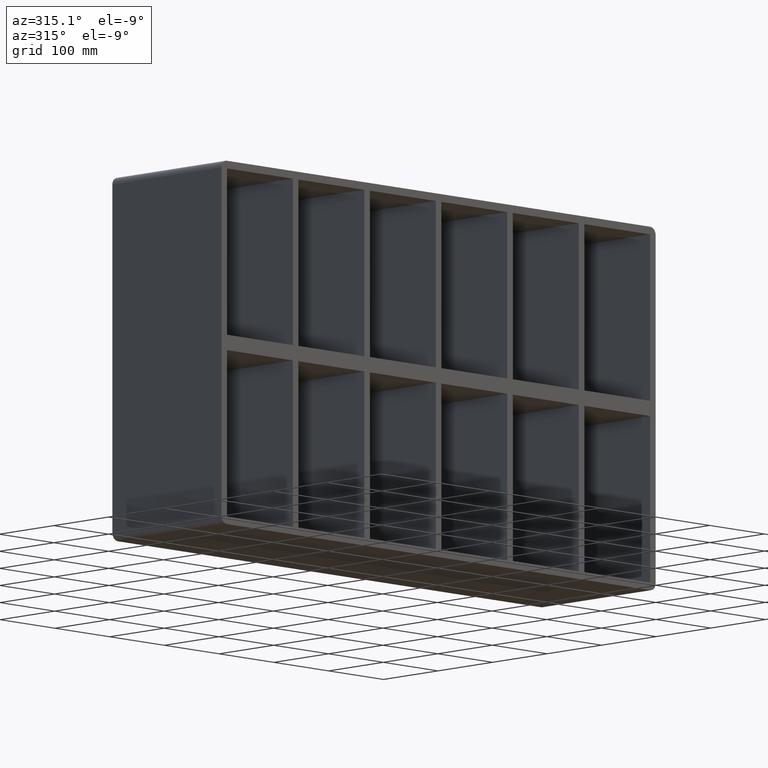
[diagram: clean part render]
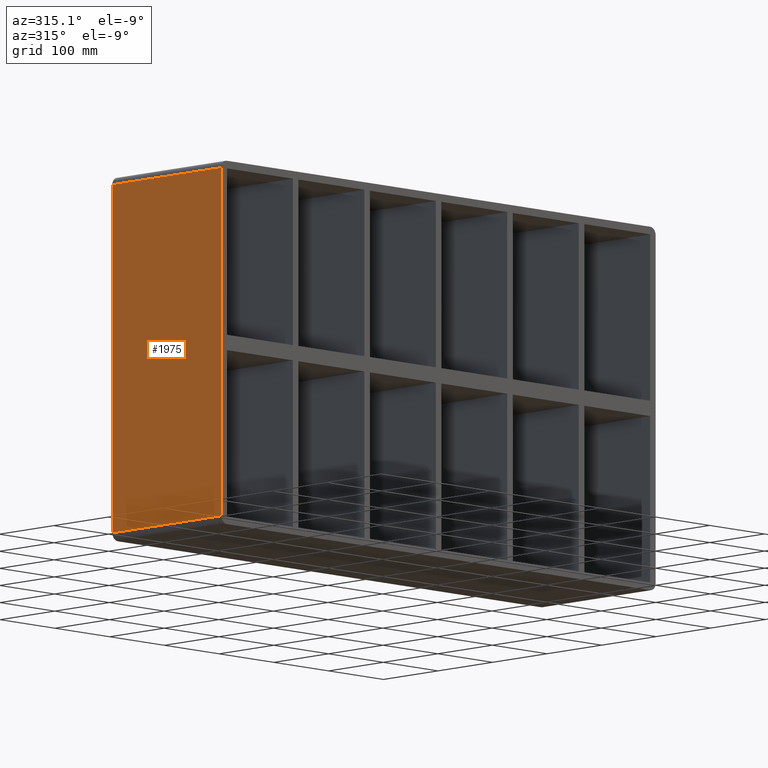
[diagram: same view with one face highlighted and labeled with its STEP entity id]
A machine part, auxiliary view. The second image highlights one B-rep face of the part: STEP entity #1975.
In plain terms, the highlighted planar face has unit normal (-1, 0, 0).
Its self-contained STEP definition (entity closure, byte-faithful):
#843=CARTESIAN_POINT('',(-396.50000000000006,-3.0,-228.0));
#844=VERTEX_POINT('',#843);
#894=CARTESIAN_POINT('',(-396.50000000000006,-3.0,228.0));
#895=VERTEX_POINT('',#894);
#903=CARTESIAN_POINT('',(-396.50000000000006,-3.0,228.0));
#904=DIRECTION('',(0.0,0.0,-1.0));
#905=VECTOR('',#904,456.0);
#906=LINE('',#903,#905);
#907=EDGE_CURVE('',#895,#844,#906,.T.);
#1234=CARTESIAN_POINT('',(-396.50000000000006,197.0,-228.0));
#1235=VERTEX_POINT('',#1234);
#1245=CARTESIAN_POINT('',(-396.50000000000006,197.0,228.0));
#1246=VERTEX_POINT('',#1245);
#1247=CARTESIAN_POINT('',(-396.50000000000006,197.0,-228.0));
#1248=DIRECTION('',(0.0,0.0,1.0));
#1249=VECTOR('',#1248,456.0);
#1250=LINE('',#1247,#1249);
#1251=EDGE_CURVE('',#1235,#1246,#1250,.T.);
#1853=CARTESIAN_POINT('',(-396.50000000000006,-3.0,-228.0));
#1854=DIRECTION('',(0.0,1.0,0.0));
#1855=VECTOR('',#1854,200.0);
#1856=LINE('',#1853,#1855);
#1857=EDGE_CURVE('',#844,#1235,#1856,.T.);
#1941=CARTESIAN_POINT('',(-396.50000000000006,197.0,228.0));
#1942=DIRECTION('',(0.0,-1.0,0.0));
#1943=VECTOR('',#1942,200.0);
#1944=LINE('',#1941,#1943);
#1945=EDGE_CURVE('',#1246,#895,#1944,.T.);
#1964=CARTESIAN_POINT('',(-396.50000000000006,0.0,-238.0));
#1965=DIRECTION('',(-1.0,0.0,0.0));
#1966=DIRECTION('',(0.0,0.0,1.0));
#1967=AXIS2_PLACEMENT_3D('',#1964,#1965,#1966);
#1968=PLANE('',#1967);
#1969=ORIENTED_EDGE('',*,*,#1857,.F.);
#1970=ORIENTED_EDGE('',*,*,#907,.F.);
#1971=ORIENTED_EDGE('',*,*,#1945,.F.);
#1972=ORIENTED_EDGE('',*,*,#1251,.F.);
#1973=EDGE_LOOP('',(#1969,#1970,#1971,#1972));
#1974=FACE_OUTER_BOUND('',#1973,.T.);
#1975=ADVANCED_FACE('',(#1974),#1968,.T.);